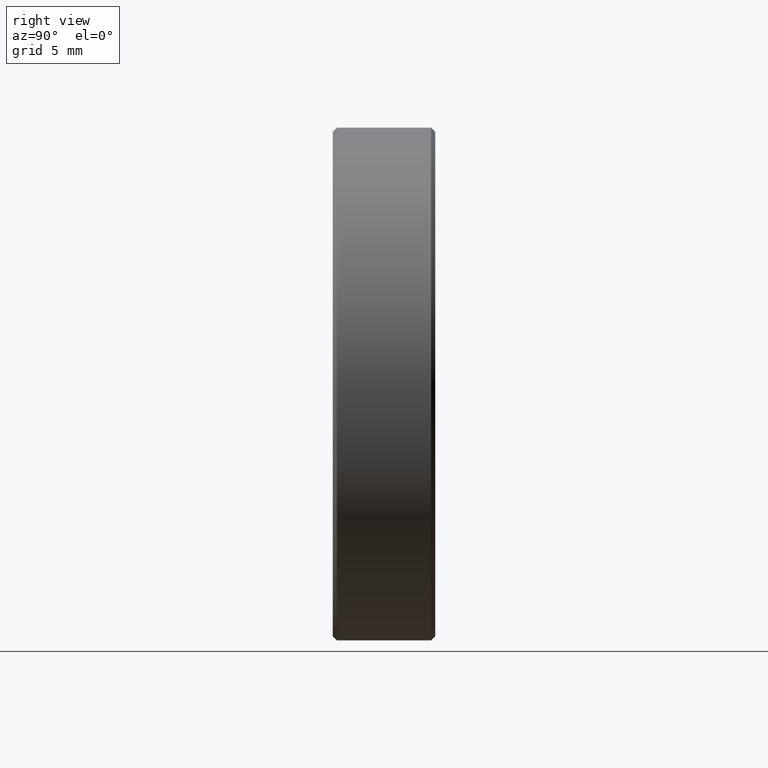
[diagram: clean part render]
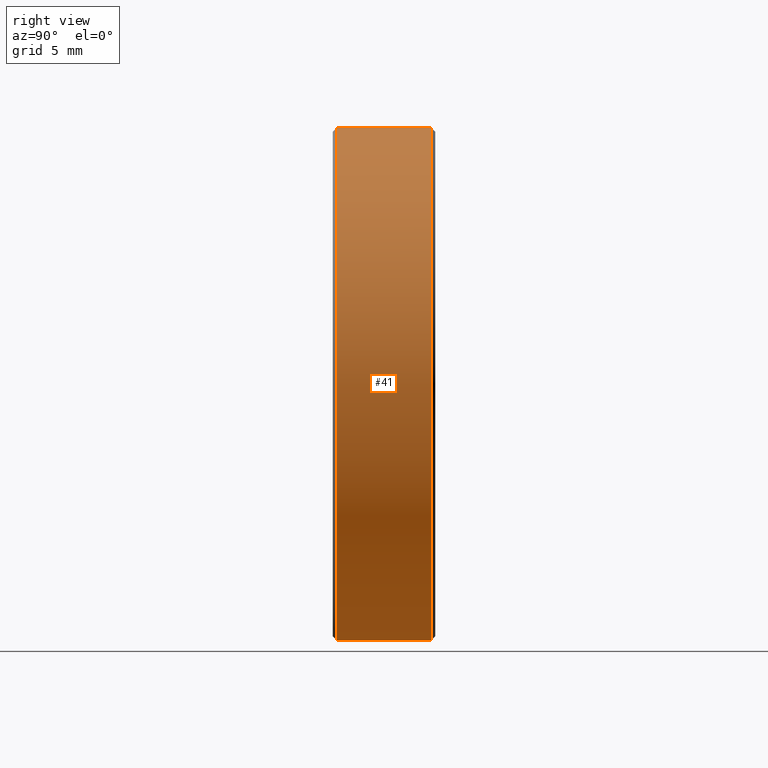
[diagram: same view with one face highlighted and labeled with its STEP entity id]
A machine part, right view. The second image highlights one B-rep face of the part: STEP entity #41.
In plain terms, the highlighted cylindrical surface (bore or boss wall) has radius 12.5 mm, axis along (-0, -1, -0).
Its self-contained STEP definition (entity closure, byte-faithful):
#3 = CIRCLE ( 'NONE', #174, 12.50000000000000000 ) ;
#19 = CARTESIAN_POINT ( 'NONE',  ( 0.000000000000000000, 5.000000000000000000, 0.000000000000000000 ) ) ;
#39 = EDGE_LOOP ( 'NONE', ( #47 ) ) ;
#41 = ADVANCED_FACE ( 'NONE', ( #143, #201 ), #298, .T. ) ;
#47 = ORIENTED_EDGE ( 'NONE', *, *, #256, .T. ) ;
#48 = DIRECTION ( 'NONE',  ( 0.000000000000000000, 0.000000000000000000, 1.000000000000000000 ) ) ;
#79 = DIRECTION ( 'NONE',  ( 0.000000000000000000, 0.000000000000000000, -1.000000000000000000 ) ) ;
#125 = CIRCLE ( 'NONE', #215, 12.50000000000000000 ) ;
#143 = FACE_OUTER_BOUND ( 'NONE', #385, .T. ) ;
#151 = DIRECTION ( 'NONE',  ( -0.000000000000000000, -1.000000000000000000, -0.000000000000000000 ) ) ;
#164 = VERTEX_POINT ( 'NONE', #366 ) ;
#171 = CARTESIAN_POINT ( 'NONE',  ( 0.000000000000000000, 4.800000000000003375, 0.000000000000000000 ) ) ;
#173 = DIRECTION ( 'NONE',  ( 0.000000000000000000, 0.000000000000000000, 1.000000000000000000 ) ) ;
#174 = AXIS2_PLACEMENT_3D ( 'NONE', #349, #296, #48 ) ;
#201 = FACE_OUTER_BOUND ( 'NONE', #39, .T. ) ;
#205 = DIRECTION ( 'NONE',  ( 0.000000000000000000, -1.000000000000000000, 0.000000000000000000 ) ) ;
#215 = AXIS2_PLACEMENT_3D ( 'NONE', #171, #205, #173 ) ;
#256 = EDGE_CURVE ( 'NONE', #164, #164, #125, .T. ) ;
#265 = EDGE_CURVE ( 'NONE', #307, #307, #3, .T. ) ;
#280 = CARTESIAN_POINT ( 'NONE',  ( 0.000000000000000000, 0.2000000000000005107, 12.50000000000000000 ) ) ;
#296 = DIRECTION ( 'NONE',  ( -0.000000000000000000, 1.000000000000000000, -0.000000000000000000 ) ) ;
#298 = CYLINDRICAL_SURFACE ( 'NONE', #317, 12.50000000000000000 ) ;
#307 = VERTEX_POINT ( 'NONE', #280 ) ;
#317 = AXIS2_PLACEMENT_3D ( 'NONE', #19, #151, #79 ) ;
#349 = CARTESIAN_POINT ( 'NONE',  ( 0.000000000000000000, 0.2000000000000005107, 0.000000000000000000 ) ) ;
#355 = ORIENTED_EDGE ( 'NONE', *, *, #265, .T. ) ;
#366 = CARTESIAN_POINT ( 'NONE',  ( 0.000000000000000000, 4.800000000000003375, 12.50000000000000000 ) ) ;
#385 = EDGE_LOOP ( 'NONE', ( #355 ) ) ;